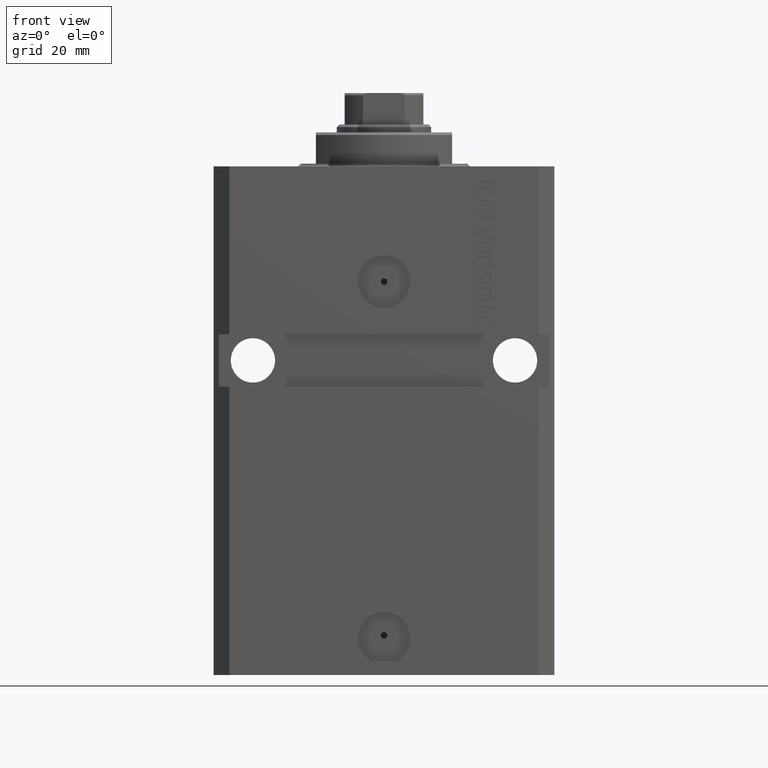
[diagram: clean part render]
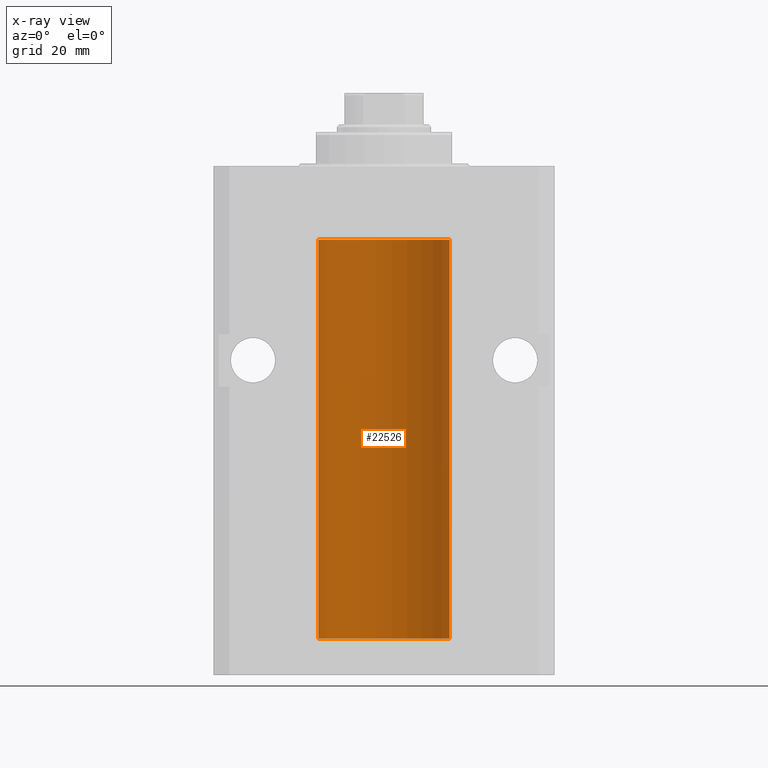
[diagram: x-ray — body ghosted, one internal face saturated and labeled with its STEP entity id]
A machine part, front view, then the same camera in x-ray: the body is ghosted and one INTERNAL B-rep face — a face not visible from any outside direction — is saturated and labeled: STEP entity #22526.
In plain terms, the highlighted cylindrical surface (partial cylindrical patch) has radius 12.5 mm, axis along (0, 0, 1).
Its self-contained STEP definition (entity closure, byte-faithful):
#191 = LINE ( 'NONE', #14753, #1820 ) ;
#349 = B_SPLINE_CURVE_WITH_KNOTS ( 'NONE', 3,
 ( #949, #29174, #14822, #4523, #18406, #33208, #40574, #44378 ),
 .UNSPECIFIED., .F., .F.,
 ( 4, 2, 2, 4 ),
 ( 2.509939476794470102E-18, 0.0002443481056285673339, 0.0004886962112571320658, 0.0009773924225142615295 ),
 .UNSPECIFIED. ) ;
#394 = EDGE_CURVE ( 'NONE', #28749, #18395, #37926, .T. ) ;
#514 = EDGE_CURVE ( 'NONE', #5306, #37975, #5062, .T. ) ;
#949 = CARTESIAN_POINT ( 'NONE',  ( 12.50000000000000000, 1.401970070701188648E-15, -22.62500000000000000 ) ) ;
#1323 = CARTESIAN_POINT ( 'NONE',  ( 12.48436522214885969, 0.6250000000001505462, -85.16312747540310113 ) ) ;
#1820 = VECTOR ( 'NONE', #32445, 1000.000000000000000 ) ;
#2695 = CARTESIAN_POINT ( 'NONE',  ( 0.000000000000000000, 0.000000000000000000, -90.09999999999999432 ) ) ;
#3489 = CARTESIAN_POINT ( 'NONE',  ( 12.50000000000000000, 1.401970070701188648E-15, -22.62500000000000000 ) ) ;
#3572 = B_SPLINE_CURVE_WITH_KNOTS ( 'NONE', 3,
 ( #14306, #39604, #17657, #39132, #28666, #9531, #21243, #13832 ),
 .UNSPECIFIED., .F., .F.,
 ( 4, 2, 2, 4 ),
 ( 0.0009773924225142615295, 0.001221629287363808214, 0.001465866152213354898, 0.001954339881912455640 ),
 .UNSPECIFIED. ) ;
#4523 = CARTESIAN_POINT ( 'NONE',  ( 12.49625698805481022, 0.3151108292486967666, -22.54593695688171806 ) ) ;
#5062 = LINE ( 'NONE', #16048, #36842 ) ;
#5306 = VERTEX_POINT ( 'NONE', #24767 ) ;
#5803 = VERTEX_POINT ( 'NONE', #18917 ) ;
#7860 = DIRECTION ( 'NONE',  ( 0.000000000000000000, 0.000000000000000000, 1.000000000000000000 ) ) ;
#8718 = CARTESIAN_POINT ( 'NONE',  ( 12.48809900631782099, 0.5573988467445673001, -85.32640147935474317 ) ) ;
#9406 = CARTESIAN_POINT ( 'NONE',  ( 12.48436522214846711, 0.6250000000078848039, -84.99999999999924682 ) ) ;
#9531 = CARTESIAN_POINT ( 'NONE',  ( 12.49631206032075958, 0.3252904079142809324, -21.44139700214925526 ) ) ;
#9992 = LINE ( 'NONE', #24601, #21568 ) ;
#10750 = VERTEX_POINT ( 'NONE', #3489 ) ;
#10988 = CARTESIAN_POINT ( 'NONE',  ( 12.50000000000000000, 0.000000000000000000, -90.09999999999999432 ) ) ;
#11021 = ORIENTED_EDGE ( 'NONE', *, *, #39354, .T. ) ;
#11377 = ORIENTED_EDGE ( 'NONE', *, *, #27995, .T. ) ;
#12159 = AXIS2_PLACEMENT_3D ( 'NONE', #29133, #28182, #43652 ) ;
#13147 = EDGE_LOOP ( 'NONE', ( #19850, #28553, #20373, #14155, #36362, #47022, #38110, #11021, #11377, #32529 ) ) ;
#13832 = CARTESIAN_POINT ( 'NONE',  ( 12.50000000000017941, 3.868073565084946818E-13, -21.37499999999641176 ) ) ;
#14155 = ORIENTED_EDGE ( 'NONE', *, *, #42792, .T. ) ;
#14306 = CARTESIAN_POINT ( 'NONE',  ( 12.48436522214846889, 0.6250000000078781426, -21.99999999999923261 ) ) ;
#14575 = VERTEX_POINT ( 'NONE', #28146 ) ;
#14753 = CARTESIAN_POINT ( 'NONE',  ( 12.50000000000000000, 0.000000000000000000, -90.09999999999999432 ) ) ;
#14822 = CARTESIAN_POINT ( 'NONE',  ( 12.49915742890632053, 0.1636982395582437522, -22.60872397847025894 ) ) ;
#16048 = CARTESIAN_POINT ( 'NONE',  ( -12.50000000000000000, 1.530808498934191521E-15, -90.09999999999999432 ) ) ;
#16817 = CARTESIAN_POINT ( 'NONE',  ( 12.48436522214888100, 0.6249999999996834754, -84.91847339462351840 ) ) ;
#17269 = DIRECTION ( 'NONE',  ( -0.000000000000000000, -0.000000000000000000, 1.000000000000000000 ) ) ;
#17657 = CARTESIAN_POINT ( 'NONE',  ( 12.48520578595314845, 0.6087855079133684955, -21.83656717509346024 ) ) ;
#17766 = CARTESIAN_POINT ( 'NONE',  ( 12.50000000000017941, 3.868073689162038701E-13, -84.37499999999640465 ) ) ;
#18007 = LINE ( 'NONE', #43519, #43582 ) ;
#18395 = VERTEX_POINT ( 'NONE', #22083 ) ;
#18406 = CARTESIAN_POINT ( 'NONE',  ( 12.49421963472024366, 0.3844519291903581437, -22.49947303647045160 ) ) ;
#18917 = CARTESIAN_POINT ( 'NONE',  ( 12.50000000000017941, 3.868073565084946818E-13, -21.37499999999641176 ) ) ;
#19725 = CARTESIAN_POINT ( 'NONE',  ( 12.48436522214846711, 0.6250000000078848039, -84.99999999999924682 ) ) ;
#19850 = ORIENTED_EDGE ( 'NONE', *, *, #514, .F. ) ;
#20373 = ORIENTED_EDGE ( 'NONE', *, *, #46473, .T. ) ;
#20965 = B_SPLINE_CURVE_WITH_KNOTS ( 'NONE', 3,
 ( #26897, #41890, #45485, #23313, #27142, #8718, #1323, #19725 ),
 .UNSPECIFIED., .F., .F.,
 ( 4, 2, 2, 4 ),
 ( 1.784246692340212412E-18, 0.0002443481056285665750, 0.0004886962112571313068, 0.0009773924225142606621 ),
 .UNSPECIFIED. ) ;
#21243 = CARTESIAN_POINT ( 'NONE',  ( 12.49999999999999112, 0.1631389616600882331, -21.37500000000019185 ) ) ;
#21343 = CARTESIAN_POINT ( 'NONE',  ( -12.50000000000000000, 1.530808498934191521E-15, -13.99999999999999822 ) ) ;
#21568 = VECTOR ( 'NONE', #25079, 1000.000000000000000 ) ;
#21748 = AXIS2_PLACEMENT_3D ( 'NONE', #2695, #17269, #42785 ) ;
#22083 = CARTESIAN_POINT ( 'NONE',  ( 12.50000000000017941, 3.868073689162038701E-13, -84.37499999999640465 ) ) ;
#22526 = ADVANCED_FACE ( 'NONE', ( #24211 ), #35414, .F. ) ;
#22887 = CIRCLE ( 'NONE', #12159, 12.50000000000000000 ) ;
#23313 = CARTESIAN_POINT ( 'NONE',  ( 12.49625698805481022, 0.3151108292486944906, -85.54593695688173227 ) ) ;
#24211 = FACE_OUTER_BOUND ( 'NONE', #13147, .T. ) ;
#24340 = AXIS2_PLACEMENT_3D ( 'NONE', #40570, #7860, #36537 ) ;
#24601 = CARTESIAN_POINT ( 'NONE',  ( 12.50000000000000000, 0.000000000000000000, -90.09999999999999432 ) ) ;
#24767 = CARTESIAN_POINT ( 'NONE',  ( -12.50000000000000000, 1.530808498934191521E-15, -90.09999999999999432 ) ) ;
#25079 = DIRECTION ( 'NONE',  ( -0.000000000000000000, -0.000000000000000000, 1.000000000000000000 ) ) ;
#26897 = CARTESIAN_POINT ( 'NONE',  ( 12.50000000000000000, -1.836039810331332019E-15, -85.62500000000000000 ) ) ;
#27142 = CARTESIAN_POINT ( 'NONE',  ( 12.49421963472024721, 0.3844519291903572555, -85.49947303647047647 ) ) ;
#27616 = EDGE_CURVE ( 'NONE', #10750, #27976, #349, .T. ) ;
#27976 = VERTEX_POINT ( 'NONE', #28775 ) ;
#27995 = EDGE_CURVE ( 'NONE', #5803, #46814, #18007, .T. ) ;
#28146 = CARTESIAN_POINT ( 'NONE',  ( 12.50000000000000000, -1.836039810331332019E-15, -85.62500000000000000 ) ) ;
#28182 = DIRECTION ( 'NONE',  ( 0.000000000000000000, 0.000000000000000000, 1.000000000000000000 ) ) ;
#28485 = EDGE_CURVE ( 'NONE', #18395, #10750, #9992, .T. ) ;
#28553 = ORIENTED_EDGE ( 'NONE', *, *, #36816, .F. ) ;
#28666 = CARTESIAN_POINT ( 'NONE',  ( 12.49012055744648997, 0.5002956126655976332, -21.61641710202404454 ) ) ;
#28749 = VERTEX_POINT ( 'NONE', #31449 ) ;
#28775 = CARTESIAN_POINT ( 'NONE',  ( 12.48436522214846889, 0.6250000000078781426, -21.99999999999923261 ) ) ;
#29133 = CARTESIAN_POINT ( 'NONE',  ( 0.000000000000000000, 0.000000000000000000, -90.09999999999999432 ) ) ;
#29174 = CARTESIAN_POINT ( 'NONE',  ( 12.50000000000000178, 0.08262306818362735727, -22.62499999999998579 ) ) ;
#29233 = CARTESIAN_POINT ( 'NONE',  ( 12.49999999999999822, 0.1631389616600901760, -84.37500000000021316 ) ) ;
#31380 = CARTESIAN_POINT ( 'NONE',  ( 12.48520578595314845, 0.6087855079133740466, -84.83656717509343537 ) ) ;
#31449 = CARTESIAN_POINT ( 'NONE',  ( 12.48436522214846711, 0.6250000000078848039, -84.99999999999924682 ) ) ;
#32445 = DIRECTION ( 'NONE',  ( -0.000000000000000000, -0.000000000000000000, 1.000000000000000000 ) ) ;
#32529 = ORIENTED_EDGE ( 'NONE', *, *, #34747, .T. ) ;
#32566 = DIRECTION ( 'NONE',  ( -0.000000000000000000, -0.000000000000000000, 1.000000000000000000 ) ) ;
#32795 = CARTESIAN_POINT ( 'NONE',  ( 12.49012055744648997, 0.5002956126656082914, -84.61641710202405875 ) ) ;
#33084 = CARTESIAN_POINT ( 'NONE',  ( 12.50000000000000000, 0.000000000000000000, -13.99999999999999822 ) ) ;
#33208 = CARTESIAN_POINT ( 'NONE',  ( 12.48809900631782632, 0.5573988467445639694, -22.32640147935473962 ) ) ;
#34747 = EDGE_CURVE ( 'NONE', #46814, #37975, #37286, .T. ) ;
#35414 = CYLINDRICAL_SURFACE ( 'NONE', #21748, 12.50000000000000000 ) ;
#36140 = CARTESIAN_POINT ( 'NONE',  ( 12.49631206032076136, 0.3252904079142934779, -84.44139700214928723 ) ) ;
#36362 = ORIENTED_EDGE ( 'NONE', *, *, #394, .T. ) ;
#36537 = DIRECTION ( 'NONE',  ( 1.000000000000000000, 0.000000000000000000, 0.000000000000000000 ) ) ;
#36816 = EDGE_CURVE ( 'NONE', #38334, #5306, #22887, .T. ) ;
#36842 = VECTOR ( 'NONE', #45166, 1000.000000000000000 ) ;
#37286 = CIRCLE ( 'NONE', #24340, 12.50000000000000000 ) ;
#37926 = B_SPLINE_CURVE_WITH_KNOTS ( 'NONE', 3,
 ( #9406, #16817, #31380, #45935, #32795, #36140, #29233, #17766 ),
 .UNSPECIFIED., .F., .F.,
 ( 4, 2, 2, 4 ),
 ( 0.0009773924225142606621, 0.001221629287363811033, 0.001465866152213361404, 0.001954339881912461711 ),
 .UNSPECIFIED. ) ;
#37975 = VERTEX_POINT ( 'NONE', #21343 ) ;
#38110 = ORIENTED_EDGE ( 'NONE', *, *, #27616, .T. ) ;
#38334 = VERTEX_POINT ( 'NONE', #10988 ) ;
#39132 = CARTESIAN_POINT ( 'NONE',  ( 12.48810305280568222, 0.5461368461738448365, -21.68525466142676805 ) ) ;
#39354 = EDGE_CURVE ( 'NONE', #27976, #5803, #3572, .T. ) ;
#39604 = CARTESIAN_POINT ( 'NONE',  ( 12.48436522214888100, 0.6249999999996762590, -21.91847339462350774 ) ) ;
#40570 = CARTESIAN_POINT ( 'NONE',  ( 0.000000000000000000, 0.000000000000000000, -13.99999999999999822 ) ) ;
#40574 = CARTESIAN_POINT ( 'NONE',  ( 12.48436522214885613, 0.6250000000001446621, -22.16312747540306916 ) ) ;
#41890 = CARTESIAN_POINT ( 'NONE',  ( 12.49999999999999822, 0.08262306818362624705, -85.62499999999998579 ) ) ;
#42785 = DIRECTION ( 'NONE',  ( 1.000000000000000000, 0.000000000000000000, 0.000000000000000000 ) ) ;
#42792 = EDGE_CURVE ( 'NONE', #14575, #28749, #20965, .T. ) ;
#43519 = CARTESIAN_POINT ( 'NONE',  ( 12.50000000000000000, 0.000000000000000000, -90.09999999999999432 ) ) ;
#43582 = VECTOR ( 'NONE', #32566, 1000.000000000000000 ) ;
#43652 = DIRECTION ( 'NONE',  ( 1.000000000000000000, 0.000000000000000000, 0.000000000000000000 ) ) ;
#44378 = CARTESIAN_POINT ( 'NONE',  ( 12.48436522214846889, 0.6250000000078781426, -21.99999999999923261 ) ) ;
#45166 = DIRECTION ( 'NONE',  ( -0.000000000000000000, -0.000000000000000000, 1.000000000000000000 ) ) ;
#45485 = CARTESIAN_POINT ( 'NONE',  ( 12.49915742890631876, 0.1636982395582385896, -85.60872397847026605 ) ) ;
#45935 = CARTESIAN_POINT ( 'NONE',  ( 12.48810305280568222, 0.5461368461738485003, -84.68525466142678226 ) ) ;
#46473 = EDGE_CURVE ( 'NONE', #38334, #14575, #191, .T. ) ;
#46814 = VERTEX_POINT ( 'NONE', #33084 ) ;
#47022 = ORIENTED_EDGE ( 'NONE', *, *, #28485, .T. ) ;